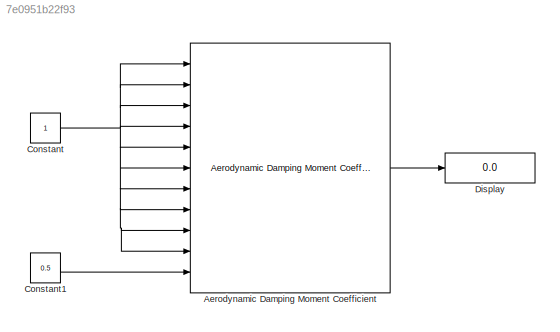
MODEL slx_7e0951b22f93
KIND model
BLOCK [Reference] Aerodynamic Damping Moment Coefficient  REF=rocket_angular_flight_library/Aerodynamic Damping Moment Coefficient
  Ports = [11, 1]
  SourceBlock = rocket_angular_flight_library/Aerodynamic Damping Moment Coefficient
  SourceType = SubSystem
BLOCK [Constant] Constant
BLOCK [Constant] Constant1
  Value = 0.5
BLOCK [Display] Display
  Decimation = 1
  Ports = [1]
LINE Aerodynamic Damping Moment Coefficient:1 -> Display:1
LINE Constant1:1 -> Aerodynamic Damping Moment Coefficient:11
NET Constant:1 -> Aerodynamic Damping Moment Coefficient:1, Aerodynamic Damping Moment Coefficient:10, Aerodynamic Damping Moment Coefficient:2, Aerodynamic Damping Moment Coefficient:3, Aerodynamic Damping Moment Coefficient:4, Aerodynamic Damping Moment Coefficient:5, Aerodynamic Damping Moment Coefficient:6, Aerodynamic Damping Moment Coefficient:7, Aerodynamic Damping Moment Coefficient:8, Aerodynamic Damping Moment Coefficient:9
note: NET lines group one-source signal fan-out (src -> all destinations, sorted); 1:1 wires keep LINE
